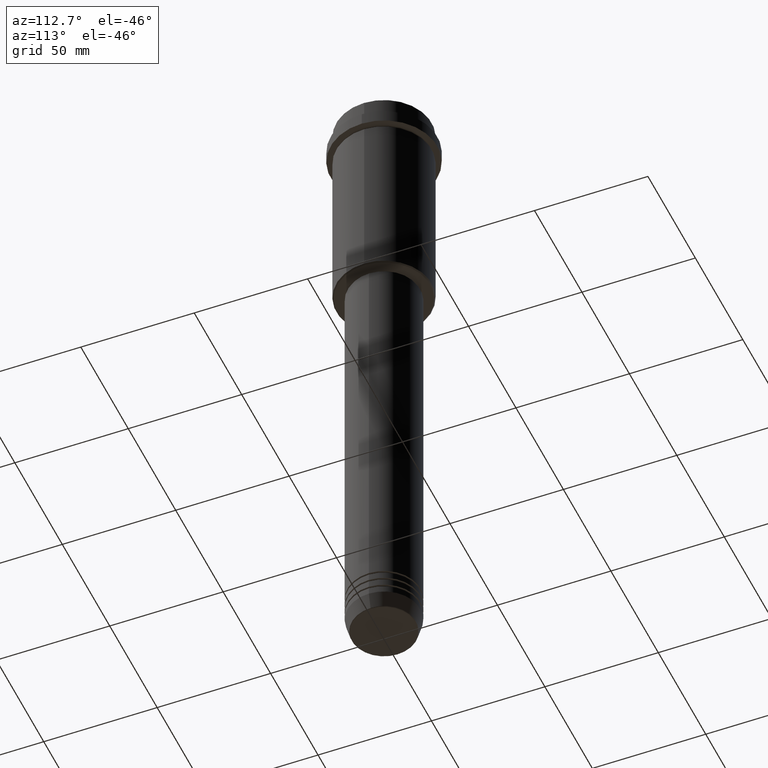
[diagram: clean part render]
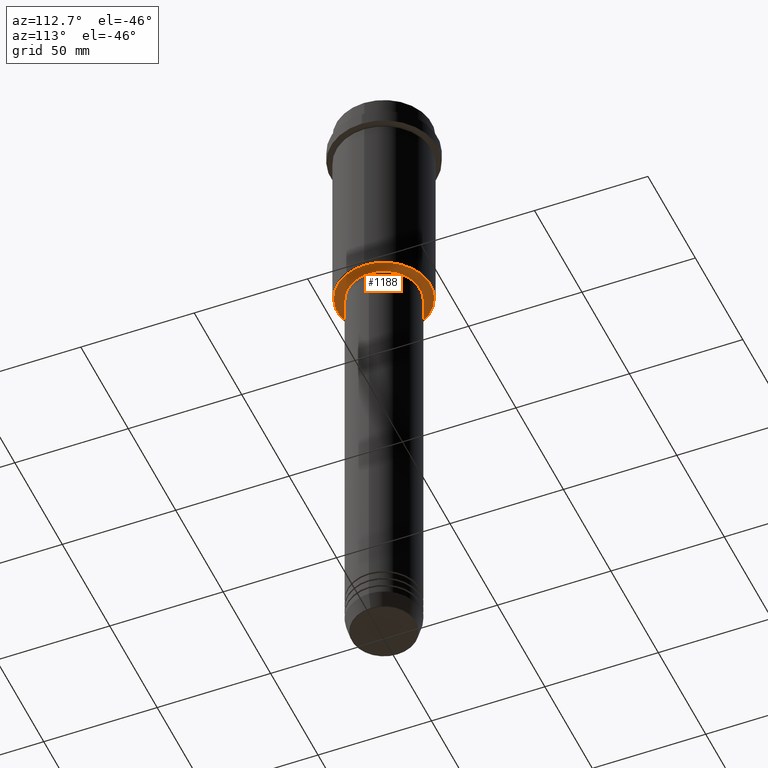
[diagram: same view with one face highlighted and labeled with its STEP entity id]
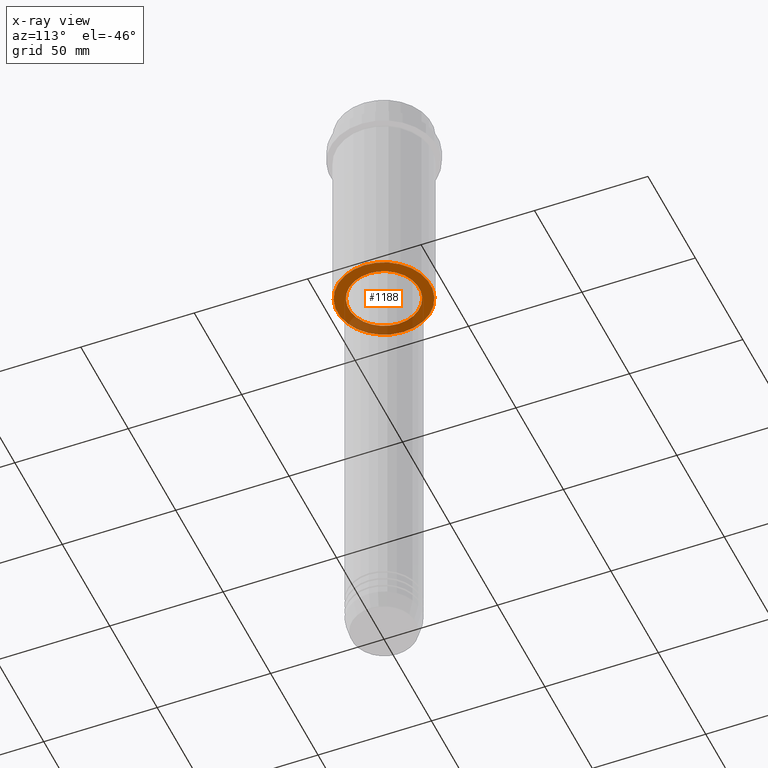
[diagram: x-ray of the same camera — body ghosted, the highlighted face saturated]
A machine part, auxiliary view. The second image highlights one B-rep face of the part: STEP entity #1188.
The next image is the same camera in x-ray: the body ghosted, the highlighted face saturated — about 26% of this face is hidden behind the body in this view.
In plain terms, the highlighted planar face has unit normal (0, 0, -1).
Its self-contained STEP definition (entity closure, byte-faithful):
#56 = EDGE_CURVE ( 'NONE', #495, #535, #436, .T. ) ;
#129 = PLANE ( 'NONE',  #228 ) ;
#150 = DIRECTION ( 'NONE',  ( 1.000000000000000000, 0.000000000000000000, 0.000000000000000000 ) ) ;
#222 = FACE_OUTER_BOUND ( 'NONE', #359, .T. ) ;
#228 = AXIS2_PLACEMENT_3D ( 'NONE', #665, #988, #1011 ) ;
#256 = ORIENTED_EDGE ( 'NONE', *, *, #1307, .T. ) ;
#359 = EDGE_LOOP ( 'NONE', ( #795, #592 ) ) ;
#394 = CARTESIAN_POINT ( 'NONE',  ( 0.000000000000000000, 0.000000000000000000, -94.99999999999998579 ) ) ;
#408 = DIRECTION ( 'NONE',  ( -1.000000000000000000, 0.000000000000000000, 0.000000000000000000 ) ) ;
#422 = EDGE_CURVE ( 'NONE', #535, #495, #733, .T. ) ;
#436 = CIRCLE ( 'NONE', #1370, 20.49999999999998934 ) ;
#495 = VERTEX_POINT ( 'NONE', #1272 ) ;
#535 = VERTEX_POINT ( 'NONE', #764 ) ;
#553 = FACE_BOUND ( 'NONE', #662, .T. ) ;
#591 = DIRECTION ( 'NONE',  ( 0.000000000000000000, 0.000000000000000000, -1.000000000000000000 ) ) ;
#592 = ORIENTED_EDGE ( 'NONE', *, *, #422, .T. ) ;
#594 = CARTESIAN_POINT ( 'NONE',  ( -15.50000000000000000, 1.898202538678397557E-15, -94.99999999999997158 ) ) ;
#662 = EDGE_LOOP ( 'NONE', ( #256, #1279 ) ) ;
#665 = CARTESIAN_POINT ( 'NONE',  ( 0.000000000000000000, 21.00000000000000000, -94.99999999999998579 ) ) ;
#733 = CIRCLE ( 'NONE', #1180, 20.49999999999998934 ) ;
#764 = CARTESIAN_POINT ( 'NONE',  ( -20.49999999999998934, 2.541142108230757085E-15, -94.99999999999998579 ) ) ;
#795 = ORIENTED_EDGE ( 'NONE', *, *, #56, .T. ) ;
#913 = DIRECTION ( 'NONE',  ( -0.000000000000000000, -0.000000000000000000, 1.000000000000000000 ) ) ;
#924 = EDGE_CURVE ( 'NONE', #1304, #1029, #1330, .T. ) ;
#988 = DIRECTION ( 'NONE',  ( 0.000000000000000000, 0.000000000000000000, -1.000000000000000000 ) ) ;
#1011 = DIRECTION ( 'NONE',  ( -1.000000000000000000, 0.000000000000000000, -0.000000000000000000 ) ) ;
#1029 = VERTEX_POINT ( 'NONE', #1301 ) ;
#1058 = DIRECTION ( 'NONE',  ( 0.000000000000000000, 0.000000000000000000, -1.000000000000000000 ) ) ;
#1061 = CARTESIAN_POINT ( 'NONE',  ( 0.000000000000000000, 0.000000000000000000, -94.99999999999997158 ) ) ;
#1090 = CIRCLE ( 'NONE', #1269, 15.50000000000000000 ) ;
#1135 = AXIS2_PLACEMENT_3D ( 'NONE', #1061, #1363, #150 ) ;
#1168 = CARTESIAN_POINT ( 'NONE',  ( 0.000000000000000000, 0.000000000000000000, -94.99999999999998579 ) ) ;
#1180 = AXIS2_PLACEMENT_3D ( 'NONE', #1168, #591, #1360 ) ;
#1188 = ADVANCED_FACE ( 'NONE', ( #222, #553 ), #129, .T. ) ;
#1269 = AXIS2_PLACEMENT_3D ( 'NONE', #1341, #913, #1362 ) ;
#1272 = CARTESIAN_POINT ( 'NONE',  ( 20.49999999999998934, 0.000000000000000000, -94.99999999999998579 ) ) ;
#1279 = ORIENTED_EDGE ( 'NONE', *, *, #924, .T. ) ;
#1301 = CARTESIAN_POINT ( 'NONE',  ( 15.50000000000000000, 0.000000000000000000, -94.99999999999997158 ) ) ;
#1304 = VERTEX_POINT ( 'NONE', #594 ) ;
#1307 = EDGE_CURVE ( 'NONE', #1029, #1304, #1090, .T. ) ;
#1330 = CIRCLE ( 'NONE', #1135, 15.50000000000000000 ) ;
#1341 = CARTESIAN_POINT ( 'NONE',  ( 0.000000000000000000, 0.000000000000000000, -94.99999999999997158 ) ) ;
#1360 = DIRECTION ( 'NONE',  ( -1.000000000000000000, 0.000000000000000000, 0.000000000000000000 ) ) ;
#1362 = DIRECTION ( 'NONE',  ( 1.000000000000000000, 0.000000000000000000, 0.000000000000000000 ) ) ;
#1363 = DIRECTION ( 'NONE',  ( -0.000000000000000000, -0.000000000000000000, 1.000000000000000000 ) ) ;
#1370 = AXIS2_PLACEMENT_3D ( 'NONE', #394, #1058, #408 ) ;